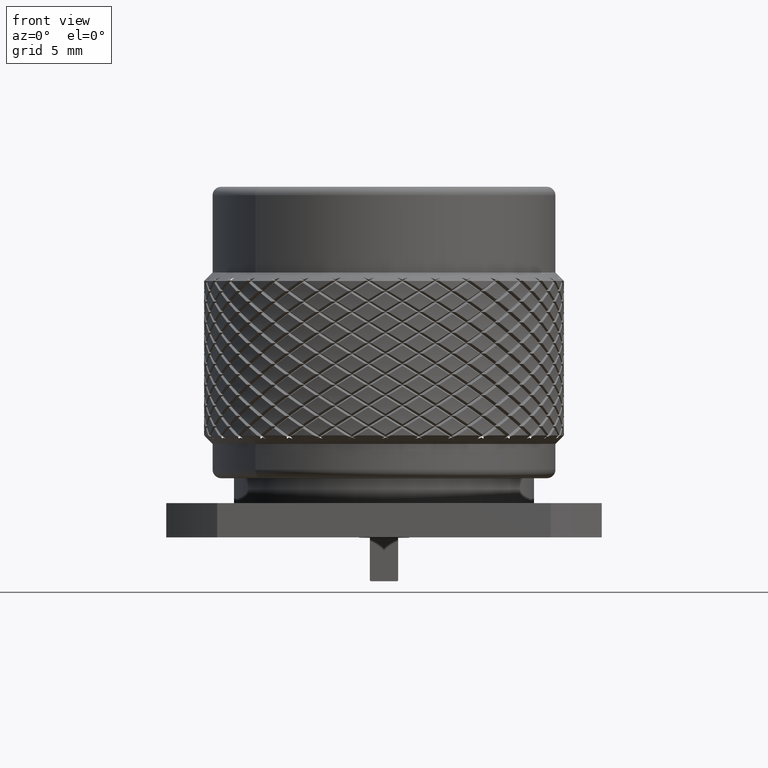
[diagram: clean part render]
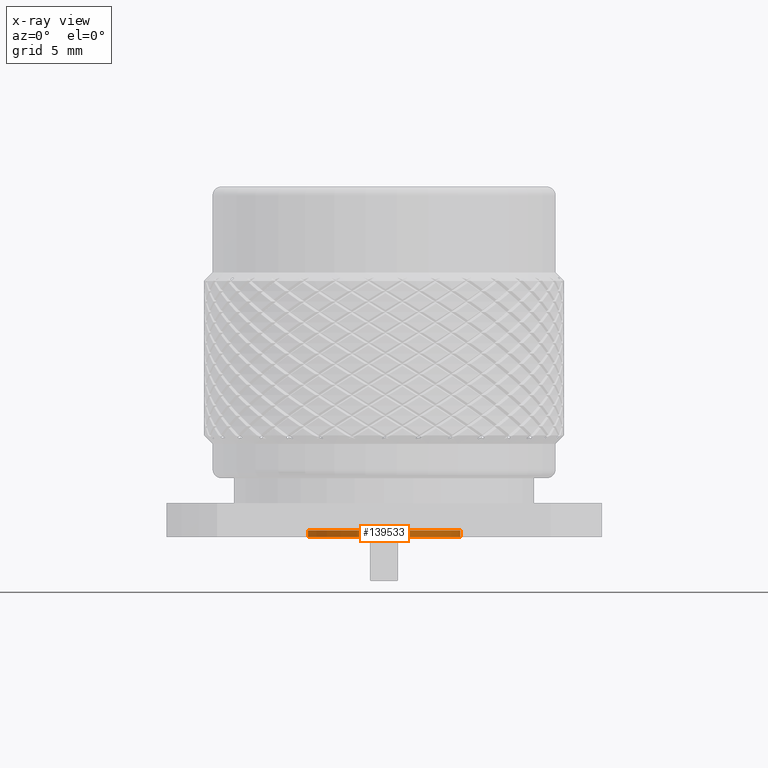
[diagram: x-ray — body ghosted, one internal face saturated and labeled with its STEP entity id]
A machine part, front view, then the same camera in x-ray: the body is ghosted and one INTERNAL B-rep face — a face not visible from any outside direction — is saturated and labeled: STEP entity #139533.
In plain terms, the highlighted cylindrical surface (partial cylindrical patch) has radius 4.45 mm, axis along (-0, -0, -1).
Its self-contained STEP definition (entity closure, byte-faithful):
#1432 = VERTEX_POINT ( 'NONE', #113454 ) ;
#1942 = VERTEX_POINT ( 'NONE', #62140 ) ;
#6351 = CARTESIAN_POINT ( 'NONE',  ( -4.450000000000001066, 0.000000000000000000, 0.3999999999999997446 ) ) ;
#7578 = VECTOR ( 'NONE', #41939, 1000.000000000000000 ) ;
#16384 = EDGE_LOOP ( 'NONE', ( #40057, #110982, #27336, #59179 ) ) ;
#27336 = ORIENTED_EDGE ( 'NONE', *, *, #142932, .T. ) ;
#27671 = FACE_OUTER_BOUND ( 'NONE', #16384, .T. ) ;
#28329 = CARTESIAN_POINT ( 'NONE',  ( 4.450000000000001066, 5.449678256205722770E-16, 0.3999999999999997446 ) ) ;
#33834 = CIRCLE ( 'NONE', #147411, 4.450000000000001066 ) ;
#40057 = ORIENTED_EDGE ( 'NONE', *, *, #47915, .F. ) ;
#41939 = DIRECTION ( 'NONE',  ( -0.000000000000000000, -0.000000000000000000, -1.000000000000000000 ) ) ;
#42316 = CARTESIAN_POINT ( 'NONE',  ( 0.000000000000000000, 0.000000000000000000, 0.000000000000000000 ) ) ;
#44662 = EDGE_CURVE ( 'NONE', #126423, #1432, #76736, .T. ) ;
#47915 = EDGE_CURVE ( 'NONE', #107509, #126423, #33834, .T. ) ;
#54168 = DIRECTION ( 'NONE',  ( -1.000000000000000000, 0.000000000000000000, 0.000000000000000000 ) ) ;
#59179 = ORIENTED_EDGE ( 'NONE', *, *, #44662, .F. ) ;
#62140 = CARTESIAN_POINT ( 'NONE',  ( 4.449999999999999289, 5.449678256205721784E-16, 0.000000000000000000 ) ) ;
#63209 = DIRECTION ( 'NONE',  ( -1.000000000000000000, 0.000000000000000000, 0.000000000000000000 ) ) ;
#69941 = DIRECTION ( 'NONE',  ( -0.000000000000000000, -0.000000000000000000, -1.000000000000000000 ) ) ;
#75112 = VECTOR ( 'NONE', #69941, 1000.000000000000000 ) ;
#76736 = LINE ( 'NONE', #150229, #7578 ) ;
#77898 = DIRECTION ( 'NONE',  ( -0.000000000000000000, -0.000000000000000000, -1.000000000000000000 ) ) ;
#80997 = CARTESIAN_POINT ( 'NONE',  ( 4.450000000000000178, 5.449678256205721784E-16, 0.000000000000000000 ) ) ;
#89189 = CARTESIAN_POINT ( 'NONE',  ( 0.000000000000000000, 0.000000000000000000, 0.3999999999999997446 ) ) ;
#101067 = CARTESIAN_POINT ( 'NONE',  ( 0.000000000000000000, 0.000000000000000000, 0.000000000000000000 ) ) ;
#106252 = LINE ( 'NONE', #80997, #75112 ) ;
#107509 = VERTEX_POINT ( 'NONE', #28329 ) ;
#110982 = ORIENTED_EDGE ( 'NONE', *, *, #155249, .T. ) ;
#113454 = CARTESIAN_POINT ( 'NONE',  ( -4.449999999999999289, 0.000000000000000000, 0.000000000000000000 ) ) ;
#124047 = CYLINDRICAL_SURFACE ( 'NONE', #131892, 4.450000000000000178 ) ;
#125597 = DIRECTION ( 'NONE',  ( -0.000000000000000000, -0.000000000000000000, -1.000000000000000000 ) ) ;
#126423 = VERTEX_POINT ( 'NONE', #6351 ) ;
#131892 = AXIS2_PLACEMENT_3D ( 'NONE', #101067, #135882, #63209 ) ;
#134236 = CIRCLE ( 'NONE', #149504, 4.449999999999999289 ) ;
#135882 = DIRECTION ( 'NONE',  ( -0.000000000000000000, -0.000000000000000000, -1.000000000000000000 ) ) ;
#139533 = ADVANCED_FACE ( 'NONE', ( #27671 ), #124047, .F. ) ;
#142932 = EDGE_CURVE ( 'NONE', #1942, #1432, #134236, .T. ) ;
#147411 = AXIS2_PLACEMENT_3D ( 'NONE', #89189, #125597, #151673 ) ;
#149504 = AXIS2_PLACEMENT_3D ( 'NONE', #42316, #77898, #54168 ) ;
#150229 = CARTESIAN_POINT ( 'NONE',  ( -4.450000000000000178, 0.000000000000000000, 0.000000000000000000 ) ) ;
#151673 = DIRECTION ( 'NONE',  ( -1.000000000000000000, 0.000000000000000000, 0.000000000000000000 ) ) ;
#155249 = EDGE_CURVE ( 'NONE', #107509, #1942, #106252, .T. ) ;